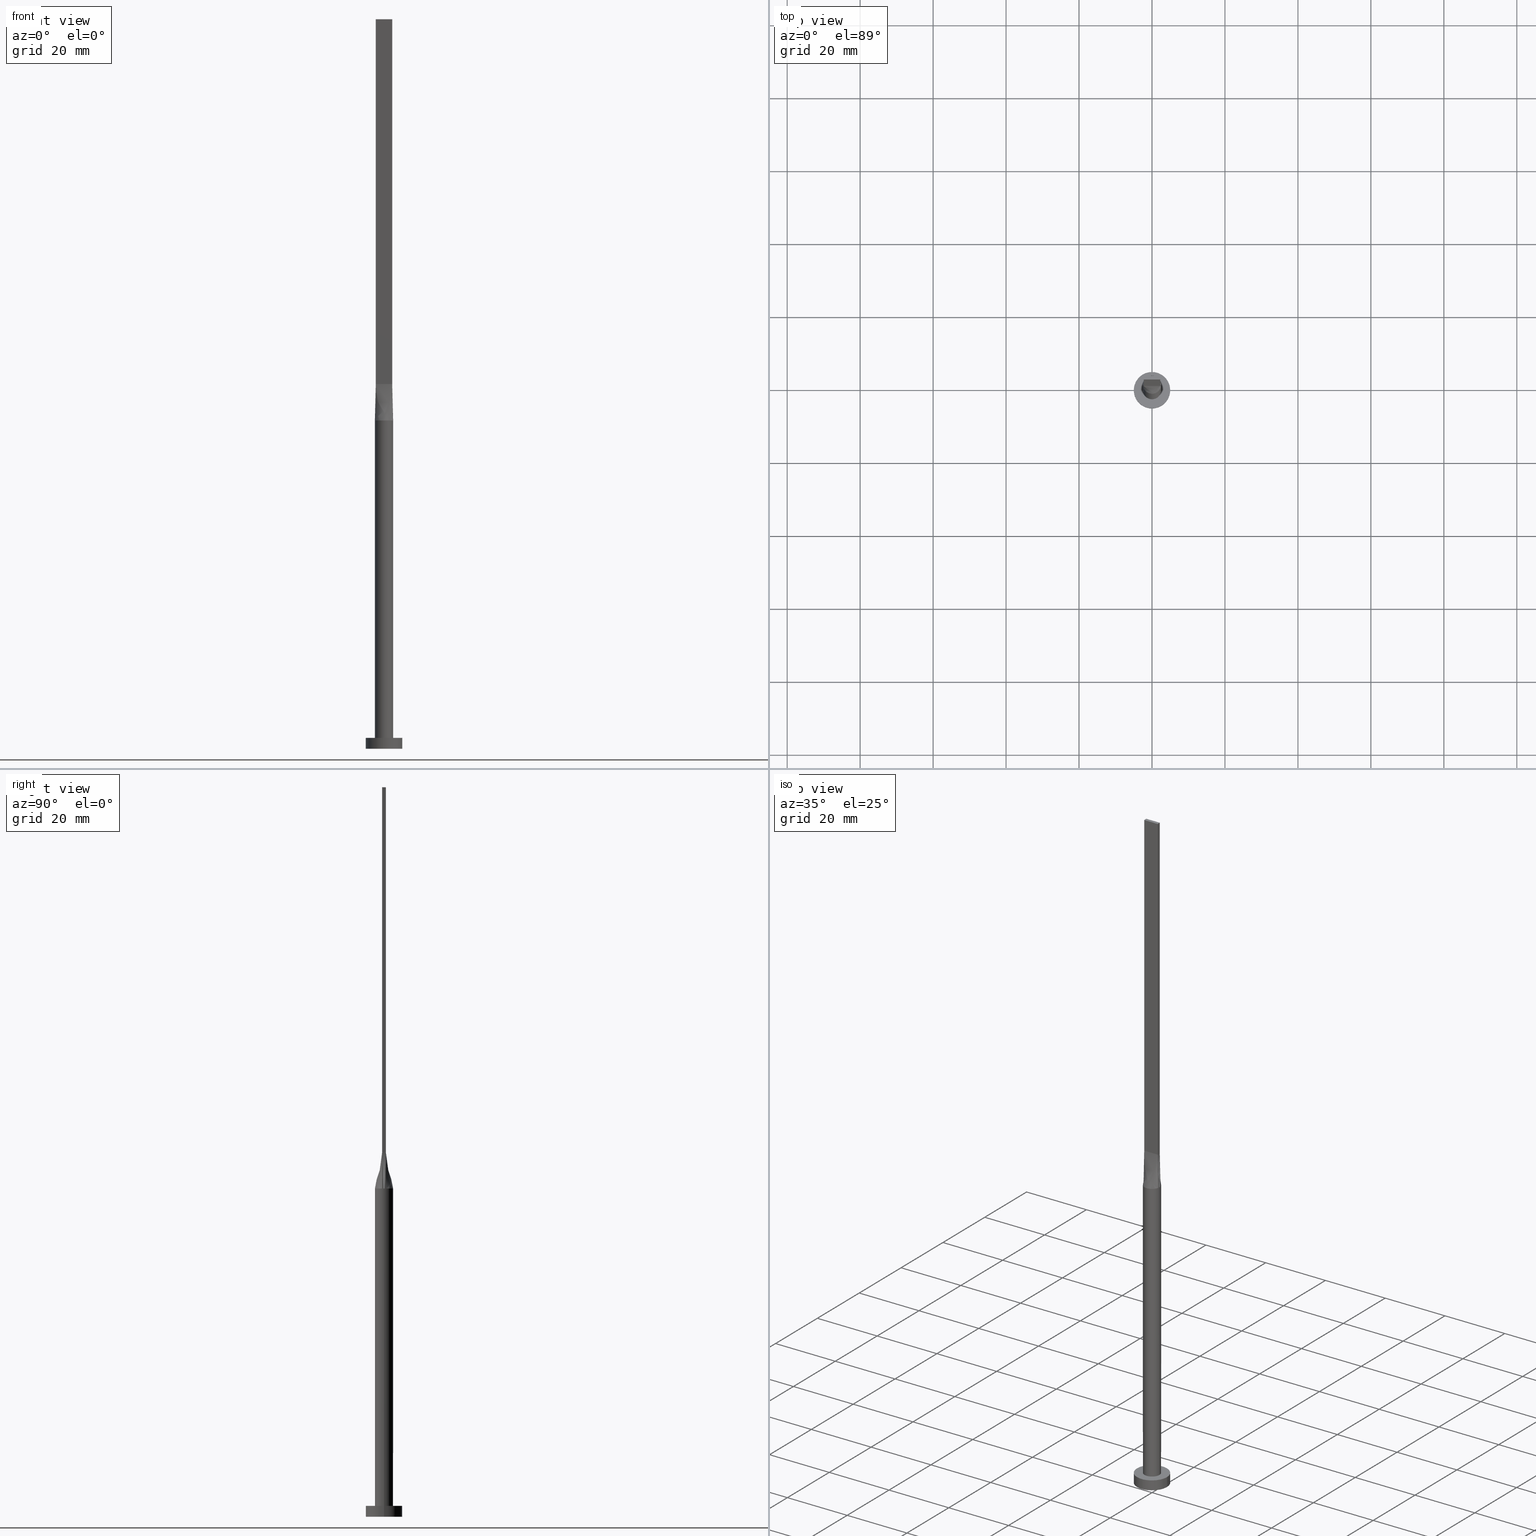
[diagram: canonical four-view strip — front | top / right | iso, engineering-drawing reading convention]
A machine part, canonical four-view strip (front | top / right | iso — engineering-drawing reading convention). The complete STEP part file that produces these views, byte-faithful:
ISO-10303-21;
HEADER;
FILE_DESCRIPTION (( 'STEP AP203' ),
    '1' );
FILE_NAME ('f4c6.STEP',
    '2023-02-13T12:34:40',
    ( '' ),
    ( '' ),
    'SwSTEP 2.0',
    'SolidWorks 2019',
    '' );
FILE_SCHEMA (( 'CONFIG_CONTROL_DESIGN' ));
ENDSEC;

DATA;
#1 = ORIENTED_EDGE ( 'NONE', *, *, #388, .T. ) ;
#2 = CARTESIAN_POINT ( 'NONE',  ( 1.875000000000000222, -0.4999999999999997780, 99.99999999999998579 ) ) ;
#3 = EDGE_LOOP ( 'NONE', ( #124, #410, #381, #63 ) ) ;
#4 = VERTEX_POINT ( 'NONE', #136 ) ;
#5 = CARTESIAN_POINT ( 'NONE',  ( -0.1874999999999995837, -0.4999999999999995559, 99.99999999999997158 ) ) ;
#6 = VECTOR ( 'NONE', #472, 1000.000000000000000 ) ;
#7 = ORIENTED_EDGE ( 'NONE', *, *, #181, .F. ) ;
#8 = EDGE_CURVE ( 'NONE', #249, #340, #45, .T. ) ;
#9 = CARTESIAN_POINT ( 'NONE',  ( 0.000000000000000000, 0.000000000000000000, 3.000000000000000000 ) ) ;
#10 = DIRECTION ( 'NONE',  ( 7.228014483236697048E-17, 1.000000000000000000, -0.000000000000000000 ) ) ;
#11 = CARTESIAN_POINT ( 'NONE',  ( 2.440467650459881899, 0.5423261445466404096, 90.00000000000000000 ) ) ;
#12 = ORIENTED_EDGE ( 'NONE', *, *, #187, .T. ) ;
#13 = FACE_OUTER_BOUND ( 'NONE', #3, .T. ) ;
#14 = CARTESIAN_POINT ( 'NONE',  ( 0.000000000000000000, 0.000000000000000000, 90.00000000000000000 ) ) ;
#15 = CARTESIAN_POINT ( 'NONE',  ( 0.3342381693191150416, 2.499999999999999556, 90.00000000000000000 ) ) ;
#16 = DIRECTION ( 'NONE',  ( 0.000000000000000000, 0.000000000000000000, 1.000000000000000000 ) ) ;
#17 = DIRECTION ( 'NONE',  ( 0.000000000000000000, 0.000000000000000000, 1.000000000000000000 ) ) ;
#18 = DIRECTION ( 'NONE',  ( 0.000000000000000000, 0.000000000000000000, 1.000000000000000000 ) ) ;
#19 = ORIENTED_EDGE ( 'NONE', *, *, #310, .F. ) ;
#20 = CARTESIAN_POINT ( 'NONE',  ( -5.000000000000000000, 0.000000000000000000, 3.000000000000000000 ) ) ;
#21 = B_SPLINE_SURFACE_WITH_KNOTS ( 'NONE', 3, 1, ( 
 ( #477, #250 ),
 ( #172, #133 ),
 ( #85, #216 ),
 ( #397, #349 ),
 ( #522, #135 ),
 ( #385, #30 ),
 ( #78, #168 ),
 ( #412, #276 ),
 ( #15, #188 ),
 ( #149, #281 ),
 ( #238, #415 ),
 ( #189, #323 ),
 ( #491, #457 ),
 ( #424, #146 ),
 ( #447, #58 ),
 ( #326, #225 ),
 ( #404, #552 ),
 ( #25, #155 ) ),
 .UNSPECIFIED., .F., .F., .F.,
 ( 4, 2, 2, 2, 2, 2, 2, 2, 4 ),
 ( 2, 2 ),
 ( 0.000000000000000000, 0.1249999999999999722, 0.2500000000000000000, 0.3750000000000000000, 0.5000000000000001110, 0.6250000000000001110, 0.7500000000000000000, 0.8750000000000000000, 1.000000000000000000 ),
 ( 0.000000000000000000, 1.000000000000000000 ),
 .UNSPECIFIED. ) ;
#22 = EDGE_CURVE ( 'NONE', #157, #4, #356, .T. ) ;
#23 = CC_DESIGN_APPROVAL ( #577, ( #113 ) ) ;
#24 = CARTESIAN_POINT ( 'NONE',  ( 2.500000000000000000, 3.061616997868383141E-16, 90.00000000000000000 ) ) ;
#25 = CARTESIAN_POINT ( 'NONE',  ( -2.440467650459882343, 0.5423261445466395214, 90.00000000000000000 ) ) ;
#26 = CARTESIAN_POINT ( 'NONE',  ( 0.000000000000000000, 0.000000000000000000, 200.0000000000000000 ) ) ;
#27 = VERTEX_POINT ( 'NONE', #83 ) ;
#28 = PERSON_AND_ORGANIZATION ( #290, #131 ) ;
#29 = ADVANCED_FACE ( 'NONE', ( #569 ), #201, .T. ) ;
#30 = CARTESIAN_POINT ( 'NONE',  ( 0.9374999999999986677, 0.5000000000000002220, 99.99999999999997158 ) ) ;
#31 = APPROVAL_STATUS ( 'not_yet_approved' ) ;
#32 = ORIENTED_EDGE ( 'NONE', *, *, #8, .F. ) ;
#33 = LOCAL_TIME ( 13, 34, 40.00000000000000000, #383 ) ;
#34 = CARTESIAN_POINT ( 'NONE',  ( -5.000000000000000000, 0.000000000000000000, 3.000000000000000000 ) ) ;
#35 = EDGE_LOOP ( 'NONE', ( #110, #476, #578, #494 ) ) ;
#36 = CLOSED_SHELL ( 'NONE', ( #246, #493, #325, #206, #94, #488, #482, #29, #171, #273, #419, #571, #547, #252, #515 ) ) ;
#37 = CC_DESIGN_PERSON_AND_ORGANIZATION_ASSIGNMENT ( #203, #73, ( #243 ) ) ;
#38 = CARTESIAN_POINT ( 'NONE',  ( 2.250000000000000000, -0.4999999999999997780, 200.0000000000000000 ) ) ;
#39 = CARTESIAN_POINT ( 'NONE',  ( 2.479683336734391563, -0.3658555563113470299, 90.00000000000000000 ) ) ;
#40 = CIRCLE ( 'NONE', #386, 5.000000000000000000 ) ;
#41 = FACE_OUTER_BOUND ( 'NONE', #72, .T. ) ;
#42 = UNCERTAINTY_MEASURE_WITH_UNIT (LENGTH_MEASURE( 1.000000000000000082E-05 ), #287, 'distance_accuracy_value', 'NONE');
#43 = CARTESIAN_POINT ( 'NONE',  ( 0.000000000000000000, 0.000000000000000000, 3.000000000000000000 ) ) ;
#44 = ORIENTED_EDGE ( 'NONE', *, *, #565, .T. ) ;
#45 = CIRCLE ( 'NONE', #456, 2.500000000000000000 ) ;
#46 = EDGE_CURVE ( 'NONE', #27, #336, #479, .T. ) ;
#47 = CARTESIAN_POINT ( 'NONE',  ( 0.000000000000000000, 0.000000000000000000, 3.000000000000000000 ) ) ;
#48 = CARTESIAN_POINT ( 'NONE',  ( -1.260416918790969509, -2.182794756967427752, 90.00000000000000000 ) ) ;
#49 = FACE_OUTER_BOUND ( 'NONE', #360, .T. ) ;
#50 = LOCAL_TIME ( 13, 34, 40.00000000000000000, #572 ) ;
#51 = CARTESIAN_POINT ( 'NONE',  ( -2.249999999999999556, 0.3333333333333335924, 99.99999999999997158 ) ) ;
#52 = ORIENTED_EDGE ( 'NONE', *, *, #106, .F. ) ;
#53 = CARTESIAN_POINT ( 'NONE',  ( 0.1875000000000004441, -0.4999999999999995559, 99.99999999999997158 ) ) ;
#54 = AXIS2_PLACEMENT_3D ( 'NONE', #567, #475, #70 ) ;
#55 = EDGE_LOOP ( 'NONE', ( #390, #68, #186, #218 ) ) ;
#56 = FACE_OUTER_BOUND ( 'NONE', #469, .T. ) ;
#57 = PRODUCT_RELATED_PRODUCT_CATEGORY ( 'detail', '', ( #243 ) ) ;
#58 = CARTESIAN_POINT ( 'NONE',  ( -1.500000000000000000, 0.5000000000000002220, 99.99999999999997158 ) ) ;
#59 = CARTESIAN_POINT ( 'NONE',  ( 2.249999999999999556, 0.5000000000000002220, 200.0000000000000000 ) ) ;
#60 = CARTESIAN_POINT ( 'NONE',  ( 2.062500000000000000, -0.4999999999999997780, 99.99999999999998579 ) ) ;
#61 = AXIS2_PLACEMENT_3D ( 'NONE', #151, #339, #163 ) ;
#62 = CARTESIAN_POINT ( 'NONE',  ( 2.249999999999999556, 0.5000000000000002220, 99.99999999999998579 ) ) ;
#63 = ORIENTED_EDGE ( 'NONE', *, *, #153, .T. ) ;
#64 = DIRECTION ( 'NONE',  ( -0.000000000000000000, -0.000000000000000000, -1.000000000000000000 ) ) ;
#65 = DIRECTION ( 'NONE',  ( -0.000000000000000000, -0.000000000000000000, -1.000000000000000000 ) ) ;
#66 = APPROVAL ( #512, 'NEUR�EN�' ) ;
#67 = CYLINDRICAL_SURFACE ( 'NONE', #103, 5.000000000000000000 ) ;
#68 = ORIENTED_EDGE ( 'NONE', *, *, #126, .F. ) ;
#69 = CC_DESIGN_APPROVAL ( #464, ( #175 ) ) ;
#70 = DIRECTION ( 'NONE',  ( 1.000000000000000000, 0.000000000000000000, 0.000000000000000000 ) ) ;
#71 = CARTESIAN_POINT ( 'NONE',  ( -2.440694335308545071, 0.5423767520433731004, 90.00000000000000000 ) ) ;
#72 = EDGE_LOOP ( 'NONE', ( #228, #497, #7, #428 ) ) ;
#73 = PERSON_AND_ORGANIZATION_ROLE ( 'design_owner' ) ;
#74 = ORIENTED_EDGE ( 'NONE', *, *, #388, .F. ) ;
#75 = SHAPE_DEFINITION_REPRESENTATION ( #459, #343 ) ;
#76 = ORIENTED_EDGE ( 'NONE', *, *, #233, .T. ) ;
#77 = EDGE_CURVE ( 'NONE', #157, #518, #548, .T. ) ;
#78 = CARTESIAN_POINT ( 'NONE',  ( 1.260416918790968843, 2.182794756967427752, 90.00000000000000000 ) ) ;
#79 = CARTESIAN_POINT ( 'NONE',  ( 0.6674771052374466329, -2.430579781493059865, 89.99999999999998579 ) ) ;
#80 = EDGE_LOOP ( 'NONE', ( #379, #142, #84, #198 ) ) ;
#81 = PERSON_AND_ORGANIZATION_ROLE ( 'creator' ) ;
#82 = CARTESIAN_POINT ( 'NONE',  ( 0.000000000000000000, 0.000000000000000000, 0.000000000000000000 ) ) ;
#83 = CARTESIAN_POINT ( 'NONE',  ( 2.500000000000000000, 3.061616997868383141E-16, 3.000000000000000000 ) ) ;
#84 = ORIENTED_EDGE ( 'NONE', *, *, #196, .F. ) ;
#85 = CARTESIAN_POINT ( 'NONE',  ( 2.323660390030918954, 0.9543733860570833283, 90.00000000000001421 ) ) ;
#86 = CC_DESIGN_PERSON_AND_ORGANIZATION_ASSIGNMENT ( #566, #81, ( #113 ) ) ;
#87 = ORIENTED_EDGE ( 'NONE', *, *, #77, .T. ) ;
#88 = CARTESIAN_POINT ( 'NONE',  ( 2.250000000000000000, -0.4999999999999997780, 200.0000000000000000 ) ) ;
#89 = PERSON_AND_ORGANIZATION ( #290, #131 ) ;
#90 = ORIENTED_EDGE ( 'NONE', *, *, #295, .F. ) ;
#91 = CARTESIAN_POINT ( 'NONE',  ( 1.260416918790968843, 2.182794756967427752, 90.00000000000000000 ) ) ;
#92 = VECTOR ( 'NONE', #161, 1000.000000000000000 ) ;
#93 = CIRCLE ( 'NONE', #275, 2.500000000000000000 ) ;
#94 = ADVANCED_FACE ( 'NONE', ( #227 ), #184, .F. ) ;
#95 = DIRECTION ( 'NONE',  ( -0.000000000000000000, -0.000000000000000000, -1.000000000000000000 ) ) ;
#96 = CARTESIAN_POINT ( 'NONE',  ( -2.396350003401058082, 0.7408555563113466969, 90.00000000000001421 ) ) ;
#97 = DIRECTION ( 'NONE',  ( -1.000000000000000000, 0.000000000000000000, 0.000000000000000000 ) ) ;
#98 = CARTESIAN_POINT ( 'NONE',  ( -0.9375000000000002220, -0.4999999999999995559, 99.99999999999998579 ) ) ;
#99 = CARTESIAN_POINT ( 'NONE',  ( -1.519400572660313253, 2.006070808634367264, 90.00000000000001421 ) ) ;
#100 = DESIGN_CONTEXT ( 'detailed design', #220, 'design' ) ;
#101 = DIRECTION ( 'NONE',  ( -4.336808689942017736E-16, 1.000000000000000000, -0.000000000000000000 ) ) ;
#102 = CARTESIAN_POINT ( 'NONE',  ( -0.7500000000000002220, -0.4999999999999995559, 99.99999999999997158 ) ) ;
#103 = AXIS2_PLACEMENT_3D ( 'NONE', #416, #65, #205 ) ;
#104 = CARTESIAN_POINT ( 'NONE',  ( 0.7500000000000000000, -0.4999999999999995559, 99.99999999999997158 ) ) ;
#105 = EDGE_LOOP ( 'NONE', ( #76, #369 ) ) ;
#106 = EDGE_CURVE ( 'NONE', #204, #376, #129, .T. ) ;
#107 = CYLINDRICAL_SURFACE ( 'NONE', #550, 2.500000000000000000 ) ;
#108 = DIRECTION ( 'NONE',  ( 1.000000000000000000, 0.000000000000000000, 0.000000000000000000 ) ) ;
#109 = VECTOR ( 'NONE', #182, 1000.000000000000000 ) ;
#110 = ORIENTED_EDGE ( 'NONE', *, *, #22, .T. ) ;
#111 = CARTESIAN_POINT ( 'NONE',  ( -2.250000000000000000, -0.4999999999999994449, 99.99999999999998579 ) ) ;
#112 = CARTESIAN_POINT ( 'NONE',  ( 0.000000000000000000, 0.000000000000000000, 90.00000000000000000 ) ) ;
#113 = PRODUCT_DEFINITION_FORMATION_WITH_SPECIFIED_SOURCE ( 'LIBOVOLN�', '', #243, .NOT_KNOWN. ) ;
#114 = DIRECTION ( 'NONE',  ( 0.000000000000000000, 0.000000000000000000, 1.000000000000000000 ) ) ;
#115 = PRODUCT_DEFINITION ( 'NEZN�M�', '', #113, #100 ) ;
#116 = APPROVAL_ROLE ( '' ) ;
#117 = B_SPLINE_SURFACE_WITH_KNOTS ( 'NONE', 3, 1, ( 
 ( #232, #443 ),
 ( #359, #51 ),
 ( #541, #581 ),
 ( #446, #539 ),
 ( #236, #260 ),
 ( #438, #226 ) ),
 .UNSPECIFIED., .F., .F., .F.,
 ( 4, 2, 4 ),
 ( 2, 2 ),
 ( 0.000000000000000000, 0.5000000000000000000, 1.000000000000000000 ),
 ( 0.000000000000000000, 1.000000000000000000 ),
 .UNSPECIFIED. ) ;
#118 = CARTESIAN_POINT ( 'NONE',  ( -2.250000000000000000, -0.4999999999999994449, 200.0000000000000000 ) ) ;
#119 = ORIENTED_EDGE ( 'NONE', *, *, #319, .F. ) ;
#120 =( NAMED_UNIT ( * ) PLANE_ANGLE_UNIT ( ) SI_UNIT ( $, .RADIAN. ) );
#121 = AXIS2_PLACEMENT_3D ( 'NONE', #43, #313, #401 ) ;
#122 = ORIENTED_EDGE ( 'NONE', *, *, #8, .T. ) ;
#123 = CARTESIAN_POINT ( 'NONE',  ( 2.499291179871646396, 0.1829277781556730154, 90.00000000000000000 ) ) ;
#124 = ORIENTED_EDGE ( 'NONE', *, *, #310, .T. ) ;
#125 = PERSON_AND_ORGANIZATION_ROLE ( 'creator' ) ;
#126 = EDGE_CURVE ( 'NONE', #377, #453, #137, .T. ) ;
#127 = CALENDAR_DATE ( 2023, 13, 2 ) ;
#128 = CARTESIAN_POINT ( 'NONE',  ( 2.250000000000000000, -0.3333333333333330928, 99.99999999999997158 ) ) ;
#129 = CIRCLE ( 'NONE', #54, 5.000000000000000000 ) ;
#130 = APPROVAL_ROLE ( '' ) ;
#131 = ORGANIZATION ( 'NEUR�EN�', 'NEUR�EN�', '' ) ;
#132 = EDGE_CURVE ( 'NONE', #544, #518, #234, .T. ) ;
#133 = CARTESIAN_POINT ( 'NONE',  ( 2.062499999999999112, 0.5000000000000002220, 99.99999999999997158 ) ) ;
#134 = CARTESIAN_POINT ( 'NONE',  ( 2.250000000000000000, -0.4999999999999997780, 99.99999999999998579 ) ) ;
#135 = CARTESIAN_POINT ( 'NONE',  ( 1.312499999999998668, 0.5000000000000002220, 99.99999999999997158 ) ) ;
#136 = CARTESIAN_POINT ( 'NONE',  ( -2.249999999999999556, 0.5000000000000002220, 200.0000000000000000 ) ) ;
#137 = LINE ( 'NONE', #403, #345 ) ;
#138 = VECTOR ( 'NONE', #408, 1000.000000000000000 ) ;
#139 = DIRECTION ( 'NONE',  ( 0.000000000000000000, 0.000000000000000000, 1.000000000000000000 ) ) ;
#140 = CARTESIAN_POINT ( 'NONE',  ( 0.9375000000000000000, -0.4999999999999995559, 99.99999999999998579 ) ) ;
#141 = DIRECTION ( 'NONE',  ( -1.000000000000000000, 0.000000000000000000, 0.000000000000000000 ) ) ;
#142 = ORIENTED_EDGE ( 'NONE', *, *, #187, .F. ) ;
#143 = CARTESIAN_POINT ( 'NONE',  ( -0.6674771052374470770, 2.430579781493059421, 89.99999999999998579 ) ) ;
#144 = CARTESIAN_POINT ( 'NONE',  ( 0.000000000000000000, 0.000000000000000000, 90.00000000000000000 ) ) ;
#145 = VECTOR ( 'NONE', #255, 1000.000000000000000 ) ;
#146 = CARTESIAN_POINT ( 'NONE',  ( -1.312500000000000222, 0.5000000000000002220, 99.99999999999997158 ) ) ;
#147 = CARTESIAN_POINT ( 'NONE',  ( -2.440694335308545071, 0.5423767520433731004, 90.00000000000000000 ) ) ;
#148 = CARTESIAN_POINT ( 'NONE',  ( 2.249999999999999556, 0.3333333333333335369, 99.99999999999997158 ) ) ;
#149 = CARTESIAN_POINT ( 'NONE',  ( -0.3342381693191151526, 2.499999999999999556, 90.00000000000001421 ) ) ;
#150 = EDGE_CURVE ( 'NONE', #340, #282, #224, .T. ) ;
#151 = CARTESIAN_POINT ( 'NONE',  ( -2.249999999999999556, 0.5000000000000002220, 200.0000000000000000 ) ) ;
#152 = EDGE_LOOP ( 'NONE', ( #423, #119, #303, #87 ) ) ;
#153 = EDGE_CURVE ( 'NONE', #453, #371, #180, .T. ) ;
#154 = DIRECTION ( 'NONE',  ( -0.000000000000000000, -0.000000000000000000, -1.000000000000000000 ) ) ;
#155 = CARTESIAN_POINT ( 'NONE',  ( -2.249999999999999556, 0.5000000000000002220, 99.99999999999998579 ) ) ;
#156 = PERSON_AND_ORGANIZATION ( #290, #131 ) ;
#157 = VERTEX_POINT ( 'NONE', #405 ) ;
#158 = COORDINATED_UNIVERSAL_TIME_OFFSET ( 1, 0, .AHEAD. ) ;
#159 = FACE_OUTER_BOUND ( 'NONE', #55, .T. ) ;
#160 = DIRECTION ( 'NONE',  ( 0.000000000000000000, 0.000000000000000000, 1.000000000000000000 ) ) ;
#161 = DIRECTION ( 'NONE',  ( -0.000000000000000000, -0.000000000000000000, -1.000000000000000000 ) ) ;
#162 = VERTEX_POINT ( 'NONE', #317 ) ;
#163 = DIRECTION ( 'NONE',  ( 4.336808689942020201E-16, 1.000000000000000000, 0.000000000000000000 ) ) ;
#164 = EDGE_CURVE ( 'NONE', #197, #249, #382, .T. ) ;
#165 = LINE ( 'NONE', #211, #145 ) ;
#166 = VERTEX_POINT ( 'NONE', #274 ) ;
#167 = AXIS2_PLACEMENT_3D ( 'NONE', #418, #16, #549 ) ;
#168 = CARTESIAN_POINT ( 'NONE',  ( 0.7499999999999986677, 0.5000000000000002220, 99.99999999999997158 ) ) ;
#169 = APPROVAL_DATE_TIME ( #517, #577 ) ;
#170 = CARTESIAN_POINT ( 'NONE',  ( 1.312499999999999778, -0.4999999999999996669, 99.99999999999998579 ) ) ;
#171 = ADVANCED_FACE ( 'NONE', ( #49 ), #117, .T. ) ;
#172 = CARTESIAN_POINT ( 'NONE',  ( 2.396350003401058526, 0.7408555563113465858, 90.00000000000001421 ) ) ;
#173 = LINE ( 'NONE', #524, #442 ) ;
#174 = ORIENTED_EDGE ( 'NONE', *, *, #77, .F. ) ;
#175 = SECURITY_CLASSIFICATION ( '', '', #394 ) ;
#176 = LINE ( 'NONE', #483, #492 ) ;
#177 = COORDINATED_UNIVERSAL_TIME_OFFSET ( 1, 0, .AHEAD. ) ;
#178 = DIRECTION ( 'NONE',  ( -1.000000000000000000, 0.000000000000000000, 0.000000000000000000 ) ) ;
#179 = CARTESIAN_POINT ( 'NONE',  ( -2.249999999999999556, 0.5000000000000002220, 99.99999999999998579 ) ) ;
#180 = LINE ( 'NONE', #355, #272 ) ;
#181 = EDGE_CURVE ( 'NONE', #518, #166, #575, .T. ) ;
#182 = DIRECTION ( 'NONE',  ( -0.000000000000000000, -0.000000000000000000, -1.000000000000000000 ) ) ;
#183 = CARTESIAN_POINT ( 'NONE',  ( -0.3749999999999997780, -0.4999999999999995559, 99.99999999999997158 ) ) ;
#184 = PLANE ( 'NONE',  #311 ) ;
#185 = LINE ( 'NONE', #230, #138 ) ;
#186 = ORIENTED_EDGE ( 'NONE', *, *, #212, .F. ) ;
#187 = EDGE_CURVE ( 'NONE', #261, #544, #185, .T. ) ;
#188 = CARTESIAN_POINT ( 'NONE',  ( 0.1874999999999989175, 0.5000000000000002220, 99.99999999999997158 ) ) ;
#189 = CARTESIAN_POINT ( 'NONE',  ( -1.260416918790968843, 2.182794756967428196, 90.00000000000000000 ) ) ;
#190 = DIRECTION ( 'NONE',  ( 0.000000000000000000, 0.000000000000000000, 1.000000000000000000 ) ) ;
#191 = CARTESIAN_POINT ( 'NONE',  ( 2.396350003401058082, -0.7408555563113468079, 90.00000000000001421 ) ) ;
#192 = ORIENTED_EDGE ( 'NONE', *, *, #372, .F. ) ;
#193 = MANIFOLD_SOLID_BREP ( 'P�idat vysunut�m5', #36 ) ;
#194 = DIRECTION ( 'NONE',  ( 0.000000000000000000, -1.000000000000000000, 0.000000000000000000 ) ) ;
#195 = DIRECTION ( 'NONE',  ( 0.000000000000000000, 0.000000000000000000, 1.000000000000000000 ) ) ;
#196 = EDGE_CURVE ( 'NONE', #377, #261, #579, .T. ) ;
#197 = VERTEX_POINT ( 'NONE', #270 ) ;
#198 = ORIENTED_EDGE ( 'NONE', *, *, #126, .T. ) ;
#199 = VECTOR ( 'NONE', #101, 1000.000000000000000 ) ;
#200 = PLANE ( 'NONE',  #511 ) ;
#201 = B_SPLINE_SURFACE_WITH_KNOTS ( 'NONE', 3, 1, ( 
 ( #308, #134 ),
 ( #39, #128 ),
 ( #292, #422 ),
 ( #123, #297 ),
 ( #324, #148 ),
 ( #11, #280 ) ),
 .UNSPECIFIED., .F., .F., .F.,
 ( 4, 2, 4 ),
 ( 2, 2 ),
 ( 0.000000000000000000, 0.5000000000000000000, 1.000000000000000000 ),
 ( 0.000000000000000000, 1.000000000000000000 ),
 .UNSPECIFIED. ) ;
#202 = DIRECTION ( 'NONE',  ( -0.000000000000000000, -0.000000000000000000, -1.000000000000000000 ) ) ;
#203 = PERSON_AND_ORGANIZATION ( #290, #131 ) ;
#204 = VERTEX_POINT ( 'NONE', #354 ) ;
#205 = DIRECTION ( 'NONE',  ( -1.000000000000000000, 0.000000000000000000, 0.000000000000000000 ) ) ;
#206 = ADVANCED_FACE ( 'NONE', ( #264, #570 ), #433, .T. ) ;
#207 = LINE ( 'NONE', #294, #413 ) ;
#208 = EDGE_LOOP ( 'NONE', ( #251, #74 ) ) ;
#209 =( NAMED_UNIT ( * ) SI_UNIT ( $, .STERADIAN. ) SOLID_ANGLE_UNIT ( ) );
#210 = AXIS2_PLACEMENT_3D ( 'NONE', #223, #139, #399 ) ;
#211 = CARTESIAN_POINT ( 'NONE',  ( -2.345233825229940727, 0.5211630722733198162, 95.00000000000000000 ) ) ;
#212 = EDGE_CURVE ( 'NONE', #4, #377, #176, .T. ) ;
#213 = ORIENTED_EDGE ( 'NONE', *, *, #445, .F. ) ;
#214 = DIRECTION ( 'NONE',  ( 1.000000000000000000, 0.000000000000000000, -0.000000000000000000 ) ) ;
#215 = VECTOR ( 'NONE', #526, 1000.000000000000000 ) ;
#216 = CARTESIAN_POINT ( 'NONE',  ( 1.874999999999999112, 0.5000000000000002220, 99.99999999999997158 ) ) ;
#217 = COORDINATED_UNIVERSAL_TIME_OFFSET ( 1, 0, .AHEAD. ) ;
#218 = ORIENTED_EDGE ( 'NONE', *, *, #319, .T. ) ;
#219 = AXIS2_PLACEMENT_3D ( 'NONE', #463, #18, #291 ) ;
#220 = APPLICATION_CONTEXT ( 'configuration controlled 3d designs of mechanical parts and assemblies' ) ;
#221 = DIRECTION ( 'NONE',  ( -4.336808689942017736E-16, 1.000000000000000000, 0.000000000000000000 ) ) ;
#222 = DIRECTION ( 'NONE',  ( -0.000000000000000000, -0.000000000000000000, -1.000000000000000000 ) ) ;
#223 = CARTESIAN_POINT ( 'NONE',  ( 0.000000000000000000, 0.000000000000000000, 3.000000000000000000 ) ) ;
#224 = B_SPLINE_CURVE_WITH_KNOTS ( 'NONE', 3,
 ( #309, #432, #480, #353, #533, #441, #91, #229, #269, #530, #143, #409, #99, #574, #534, #489, #96, #147 ),
 .UNSPECIFIED., .F., .F.,
 ( 4, 2, 2, 2, 2, 2, 2, 2, 4 ),
 ( 0.000000000000000000, 0.1249999999999999722, 0.2500000000000000000, 0.3750000000000000000, 0.5000000000000001110, 0.6250000000000001110, 0.7500000000000000000, 0.8750000000000000000, 1.000000000000000000 ),
 .UNSPECIFIED. ) ;
#225 = CARTESIAN_POINT ( 'NONE',  ( -1.874999999999999778, 0.5000000000000002220, 99.99999999999997158 ) ) ;
#226 = CARTESIAN_POINT ( 'NONE',  ( -2.250000000000000000, -0.4999999999999993339, 99.99999999999998579 ) ) ;
#227 = FACE_OUTER_BOUND ( 'NONE', #208, .T. ) ;
#228 = ORIENTED_EDGE ( 'NONE', *, *, #150, .T. ) ;
#229 = CARTESIAN_POINT ( 'NONE',  ( 0.6674771052374470770, 2.430579781493058977, 89.99999999999997158 ) ) ;
#230 = CARTESIAN_POINT ( 'NONE',  ( 2.250000000000000000, -0.4999999999999997780, 200.0000000000000000 ) ) ;
#231 = VECTOR ( 'NONE', #202, 1000.000000000000000 ) ;
#232 = CARTESIAN_POINT ( 'NONE',  ( -2.440467650459881899, 0.5423261445466406316, 90.00000000000000000 ) ) ;
#233 = EDGE_CURVE ( 'NONE', #376, #204, #361, .T. ) ;
#234 = LINE ( 'NONE', #312, #199 ) ;
#235 = CARTESIAN_POINT ( 'NONE',  ( -1.519400572660313919, -2.006070808634366820, 89.99999999999998579 ) ) ;
#236 = CARTESIAN_POINT ( 'NONE',  ( -2.479683336734392007, -0.3658555563113460307, 90.00000000000000000 ) ) ;
#237 = AXIS2_PLACEMENT_3D ( 'NONE', #502, #114, #373 ) ;
#238 = CARTESIAN_POINT ( 'NONE',  ( -0.6674771052374470770, 2.430579781493059421, 89.99999999999998579 ) ) ;
#239 =( GEOMETRIC_REPRESENTATION_CONTEXT ( 3 ) GLOBAL_UNCERTAINTY_ASSIGNED_CONTEXT ( ( #42 ) ) GLOBAL_UNIT_ASSIGNED_CONTEXT ( ( #287, #120, #209 ) ) REPRESENTATION_CONTEXT ( 'NONE', 'WORKASPACE' ) );
#240 = DIRECTION ( 'NONE',  ( 1.000000000000000000, 0.000000000000000000, 0.000000000000000000 ) ) ;
#241 = FACE_OUTER_BOUND ( 'NONE', #80, .T. ) ;
#242 = MECHANICAL_CONTEXT ( 'NONE', #366, 'mechanical' ) ;
#243 = PRODUCT ( 'f4c6', 'f4c6', '', ( #242 ) ) ;
#244 = CARTESIAN_POINT ( 'NONE',  ( 0.000000000000000000, 0.000000000000000000, 0.000000000000000000 ) ) ;
#245 = VECTOR ( 'NONE', #334, 1000.000000000000000 ) ;
#246 = ADVANCED_FACE ( 'NONE', ( #316 ), #531, .T. ) ;
#247 = CARTESIAN_POINT ( 'NONE',  ( -2.396350003401058970, -0.7408555563113458087, 89.99999999999998579 ) ) ;
#248 = APPLICATION_PROTOCOL_DEFINITION ( 'international standard', 'config_control_design', 1994, #220 ) ;
#249 = VERTEX_POINT ( 'NONE', #568 ) ;
#250 = CARTESIAN_POINT ( 'NONE',  ( 2.249999999999999556, 0.5000000000000002220, 99.99999999999998579 ) ) ;
#251 = ORIENTED_EDGE ( 'NONE', *, *, #411, .F. ) ;
#252 = ADVANCED_FACE ( 'NONE', ( #434 ), #516, .F. ) ;
#253 = DIRECTION ( 'NONE',  ( 4.336808689942017736E-16, -1.000000000000000000, 0.000000000000000000 ) ) ;
#254 = DATE_TIME_ROLE ( 'classification_date' ) ;
#255 = DIRECTION ( 'NONE',  ( 0.01904314058352524902, -0.004231809018561034225, 0.9998097071888962795 ) ) ;
#256 = AXIS2_PLACEMENT_3D ( 'NONE', #9, #190, #365 ) ;
#257 = ORIENTED_EDGE ( 'NONE', *, *, #554, .F. ) ;
#258 = LINE ( 'NONE', #467, #6 ) ;
#259 = CARTESIAN_POINT ( 'NONE',  ( 2.345233825229940727, -0.5211630722733201493, 95.00000000000000000 ) ) ;
#260 = CARTESIAN_POINT ( 'NONE',  ( -2.250000000000000000, -0.3333333333333327597, 99.99999999999997158 ) ) ;
#261 = VERTEX_POINT ( 'NONE', #563 ) ;
#262 = ORIENTED_EDGE ( 'NONE', *, *, #554, .T. ) ;
#263 = CARTESIAN_POINT ( 'NONE',  ( -2.500000000000000000, 0.000000000000000000, 3.000000000000000000 ) ) ;
#264 = FACE_BOUND ( 'NONE', #414, .T. ) ;
#265 = AXIS2_PLACEMENT_3D ( 'NONE', #144, #95, #271 ) ;
#266 = LOCAL_TIME ( 13, 34, 40.00000000000000000, #217 ) ;
#267 = EDGE_CURVE ( 'NONE', #453, #544, #258, .T. ) ;
#268 = EDGE_LOOP ( 'NONE', ( #448, #322, #19, #257, #452, #525 ) ) ;
#269 = CARTESIAN_POINT ( 'NONE',  ( 0.3342381693191150416, 2.499999999999999556, 90.00000000000000000 ) ) ;
#270 = CARTESIAN_POINT ( 'NONE',  ( 2.440706242928429415, -0.5423794613208688942, 90.00000000000000000 ) ) ;
#271 = DIRECTION ( 'NONE',  ( -1.000000000000000000, 0.000000000000000000, 0.000000000000000000 ) ) ;
#272 = VECTOR ( 'NONE', #321, 1000.000000000000000 ) ;
#273 = ADVANCED_FACE ( 'NONE', ( #41 ), #21, .T. ) ;
#274 = CARTESIAN_POINT ( 'NONE',  ( -2.249999999999999556, 0.5000000000000002220, 99.99999999999998579 ) ) ;
#275 = AXIS2_PLACEMENT_3D ( 'NONE', #545, #17, #240 ) ;
#276 = CARTESIAN_POINT ( 'NONE',  ( 0.3749999999999988343, 0.5000000000000002220, 99.99999999999997158 ) ) ;
#277 = CARTESIAN_POINT ( 'NONE',  ( -0.6674771052374477431, -2.430579781493059865, 90.00000000000001421 ) ) ;
#278 = LINE ( 'NONE', #24, #285 ) ;
#279 = DIRECTION ( 'NONE',  ( 1.000000000000000000, -4.440892098500626162E-15, 0.000000000000000000 ) ) ;
#280 = CARTESIAN_POINT ( 'NONE',  ( 2.249999999999999556, 0.5000000000000002220, 99.99999999999998579 ) ) ;
#281 = CARTESIAN_POINT ( 'NONE',  ( -0.1875000000000011380, 0.5000000000000002220, 99.99999999999997158 ) ) ;
#282 = VERTEX_POINT ( 'NONE', #71 ) ;
#283 = ORIENTED_EDGE ( 'NONE', *, *, #233, .F. ) ;
#284 = EDGE_CURVE ( 'NONE', #166, #453, #335, .T. ) ;
#285 = VECTOR ( 'NONE', #64, 1000.000000000000000 ) ;
#286 = PLANE ( 'NONE',  #362 ) ;
#287 =( LENGTH_UNIT ( ) NAMED_UNIT ( * ) SI_UNIT ( .MILLI., .METRE. ) );
#288 = CARTESIAN_POINT ( 'NONE',  ( 0.000000000000000000, 0.000000000000000000, 0.000000000000000000 ) ) ;
#289 = CARTESIAN_POINT ( 'NONE',  ( -2.249999999999999556, 0.5000000000000002220, 200.0000000000000000 ) ) ;
#290 = PERSON ( 'NEUR�EN�', 'NEUR�EN�', 'NEUR�EN�', ('NEUR�EN�'), ('NEUR�EN�'), ('NEUR�EN�') ) ;
#291 = DIRECTION ( 'NONE',  ( 1.000000000000000000, 0.000000000000000000, 0.000000000000000000 ) ) ;
#292 = CARTESIAN_POINT ( 'NONE',  ( 2.499291179871646396, -0.1829277781556736815, 90.00000000000000000 ) ) ;
#293 = ORIENTED_EDGE ( 'NONE', *, *, #437, .T. ) ;
#294 = CARTESIAN_POINT ( 'NONE',  ( 2.345233825229940283, 0.5211630722733202603, 95.00000000000000000 ) ) ;
#295 = EDGE_CURVE ( 'NONE', #376, #162, #329, .T. ) ;
#296 = AXIS2_PLACEMENT_3D ( 'NONE', #47, #318, #97 ) ;
#297 = CARTESIAN_POINT ( 'NONE',  ( 2.249999999999999556, 0.1666666666666668795, 99.99999999999997158 ) ) ;
#298 = DIRECTION ( 'NONE',  ( 0.000000000000000000, 0.000000000000000000, 1.000000000000000000 ) ) ;
#299 = CARTESIAN_POINT ( 'NONE',  ( -2.250000000000000000, -0.4999999999999994449, 200.0000000000000000 ) ) ;
#300 = EDGE_LOOP ( 'NONE', ( #52, #44, #1, #90 ) ) ;
#301 = EDGE_CURVE ( 'NONE', #340, #518, #207, .T. ) ;
#302 = DATE_AND_TIME ( #127, #266 ) ;
#303 = ORIENTED_EDGE ( 'NONE', *, *, #22, .F. ) ;
#304 = ORIENTED_EDGE ( 'NONE', *, *, #164, .T. ) ;
#305 = CARTESIAN_POINT ( 'NONE',  ( -2.440688158044365785, -0.5423755258804862089, 90.00000000000000000 ) ) ;
#306 = CALENDAR_DATE ( 2023, 13, 2 ) ;
#307 = ORIENTED_EDGE ( 'NONE', *, *, #284, .F. ) ;
#308 = CARTESIAN_POINT ( 'NONE',  ( 2.440467650459881899, -0.5423261445466410757, 90.00000000000000000 ) ) ;
#309 = CARTESIAN_POINT ( 'NONE',  ( 2.440676307083422980, 0.5423728264510006003, 90.00000000000000000 ) ) ;
#310 = EDGE_CURVE ( 'NONE', #371, #197, #560, .T. ) ;
#311 = AXIS2_PLACEMENT_3D ( 'NONE', #288, #392, #214 ) ;
#312 = CARTESIAN_POINT ( 'NONE',  ( 2.249999999999999556, 0.5000000000000002220, 99.99999999999998579 ) ) ;
#313 = DIRECTION ( 'NONE',  ( 0.000000000000000000, 0.000000000000000000, 1.000000000000000000 ) ) ;
#314 = AXIS2_PLACEMENT_3D ( 'NONE', #118, #10, #458 ) ;
#315 = CARTESIAN_POINT ( 'NONE',  ( 1.935644909179608852, -1.608159499248284829, 89.99999999999998579 ) ) ;
#316 = FACE_OUTER_BOUND ( 'NONE', #470, .T. ) ;
#317 = CARTESIAN_POINT ( 'NONE',  ( -5.000000000000000000, 0.000000000000000000, 0.000000000000000000 ) ) ;
#318 = DIRECTION ( 'NONE',  ( -0.000000000000000000, -0.000000000000000000, -1.000000000000000000 ) ) ;
#319 = EDGE_CURVE ( 'NONE', #4, #166, #499, .T. ) ;
#320 = CARTESIAN_POINT ( 'NONE',  ( -2.093723281432891881, -1.388001797188529007, 90.00000000000000000 ) ) ;
#321 = DIRECTION ( 'NONE',  ( -0.01904314058352520739, -0.004231809018561164329, -0.9998097071888962795 ) ) ;
#322 = ORIENTED_EDGE ( 'NONE', *, *, #164, .F. ) ;
#323 = CARTESIAN_POINT ( 'NONE',  ( -0.7500000000000009992, 0.5000000000000002220, 99.99999999999997158 ) ) ;
#324 = CARTESIAN_POINT ( 'NONE',  ( 2.479683336734391563, 0.3658555563113463638, 90.00000000000000000 ) ) ;
#325 = ADVANCED_FACE ( 'NONE', ( #56 ), #440, .T. ) ;
#326 = CARTESIAN_POINT ( 'NONE',  ( -2.323660390030918510, 0.9543733860570832173, 90.00000000000001421 ) ) ;
#327 = CARTESIAN_POINT ( 'NONE',  ( 2.440467650459881899, -0.5423261445466405206, 90.00000000000000000 ) ) ;
#328 = ORIENTED_EDGE ( 'NONE', *, *, #437, .F. ) ;
#329 = LINE ( 'NONE', #20, #92 ) ;
#330 = VECTOR ( 'NONE', #221, 1000.000000000000000 ) ;
#331 = APPROVAL_DATE_TIME ( #368, #66 ) ;
#332 = EDGE_LOOP ( 'NONE', ( #358, #174, #460, #12 ) ) ;
#333 = EDGE_CURVE ( 'NONE', #455, #336, #173, .T. ) ;
#334 = DIRECTION ( 'NONE',  ( -0.000000000000000000, -0.000000000000000000, -1.000000000000000000 ) ) ;
#335 = LINE ( 'NONE', #462, #338 ) ;
#336 = VERTEX_POINT ( 'NONE', #263 ) ;
#337 = ORIENTED_EDGE ( 'NONE', *, *, #565, .F. ) ;
#338 = VECTOR ( 'NONE', #503, 1000.000000000000000 ) ;
#339 = DIRECTION ( 'NONE',  ( 1.000000000000000000, -4.336808689942020201E-16, 0.000000000000000000 ) ) ;
#340 = VERTEX_POINT ( 'NONE', #430 ) ;
#341 = FACE_OUTER_BOUND ( 'NONE', #300, .T. ) ;
#342 = PERSON_AND_ORGANIZATION_ROLE ( 'design_supplier' ) ;
#343 = ADVANCED_BREP_SHAPE_REPRESENTATION ( 'f4c6', ( #193, #219 ), #239 ) ;
#344 = CARTESIAN_POINT ( 'NONE',  ( 2.249999999999999556, 0.5000000000000002220, 200.0000000000000000 ) ) ;
#345 = VECTOR ( 'NONE', #222, 1000.000000000000000 ) ;
#346 = CALENDAR_DATE ( 2023, 13, 2 ) ;
#347 = APPROVAL_PERSON_ORGANIZATION ( #89, #464, #130 ) ;
#348 = EDGE_CURVE ( 'NONE', #261, #157, #436, .T. ) ;
#349 = CARTESIAN_POINT ( 'NONE',  ( 1.499999999999998668, 0.5000000000000002220, 99.99999999999997158 ) ) ;
#350 = DATE_AND_TIME ( #306, #576 ) ;
#351 = DIRECTION ( 'NONE',  ( -4.336808689942019708E-16, -1.000000000000000000, 0.000000000000000000 ) ) ;
#352 = VECTOR ( 'NONE', #487, 1000.000000000000000 ) ;
#353 = CARTESIAN_POINT ( 'NONE',  ( 2.093723281432890104, 1.388001797188529007, 89.99999999999995737 ) ) ;
#354 = CARTESIAN_POINT ( 'NONE',  ( 5.000000000000000000, 6.123233995736766282E-16, 3.000000000000000000 ) ) ;
#355 = CARTESIAN_POINT ( 'NONE',  ( -2.345233825229941171, -0.5211630722733197052, 95.00000000000000000 ) ) ;
#356 = LINE ( 'NONE', #474, #429 ) ;
#357 = CARTESIAN_POINT ( 'NONE',  ( -1.935644909179609297, -1.608159499248284829, 90.00000000000001421 ) ) ;
#358 = ORIENTED_EDGE ( 'NONE', *, *, #132, .T. ) ;
#359 = CARTESIAN_POINT ( 'NONE',  ( -2.479683336734391563, 0.3658555563113465858, 90.00000000000000000 ) ) ;
#360 = EDGE_LOOP ( 'NONE', ( #293, #262, #400, #307, #192 ) ) ;
#361 = CIRCLE ( 'NONE', #121, 5.000000000000000000 ) ;
#362 = AXIS2_PLACEMENT_3D ( 'NONE', #59, #194, #449 ) ;
#363 = CC_DESIGN_DATE_AND_TIME_ASSIGNMENT ( #350, #254, ( #175 ) ) ;
#364 = CARTESIAN_POINT ( 'NONE',  ( 2.250000000000000000, -0.4999999999999997780, 99.99999999999998579 ) ) ;
#365 = DIRECTION ( 'NONE',  ( 1.000000000000000000, 0.000000000000000000, 0.000000000000000000 ) ) ;
#366 = APPLICATION_CONTEXT ( 'configuration controlled 3d designs of mechanical parts and assemblies' ) ;
#367 = ORIENTED_EDGE ( 'NONE', *, *, #150, .F. ) ;
#368 = DATE_AND_TIME ( #553, #33 ) ;
#369 = ORIENTED_EDGE ( 'NONE', *, *, #106, .T. ) ;
#370 = VERTEX_POINT ( 'NONE', #427 ) ;
#371 = VERTEX_POINT ( 'NONE', #305 ) ;
#372 = EDGE_CURVE ( 'NONE', #282, #166, #165, .T. ) ;
#373 = DIRECTION ( 'NONE',  ( 1.000000000000000000, 0.000000000000000000, 0.000000000000000000 ) ) ;
#374 = CARTESIAN_POINT ( 'NONE',  ( -2.440467650459882343, -0.5423261445466400765, 90.00000000000000000 ) ) ;
#375 = CC_DESIGN_SECURITY_CLASSIFICATION ( #175, ( #113 ) ) ;
#376 = VERTEX_POINT ( 'NONE', #34 ) ;
#377 = VERTEX_POINT ( 'NONE', #299 ) ;
#378 = FACE_OUTER_BOUND ( 'NONE', #35, .T. ) ;
#379 = ORIENTED_EDGE ( 'NONE', *, *, #267, .T. ) ;
#380 = DIRECTION ( 'NONE',  ( -0.01904314058352520739, -0.004231809018561120961, 0.9998097071888962795 ) ) ;
#381 = ORIENTED_EDGE ( 'NONE', *, *, #267, .F. ) ;
#382 = CIRCLE ( 'NONE', #573, 2.500000000000000000 ) ;
#383 = COORDINATED_UNIVERSAL_TIME_OFFSET ( 1, 0, .AHEAD. ) ;
#384 = ORIENTED_EDGE ( 'NONE', *, *, #46, .T. ) ;
#385 = CARTESIAN_POINT ( 'NONE',  ( 1.519400572660313031, 2.006070808634367708, 89.99999999999998579 ) ) ;
#386 = AXIS2_PLACEMENT_3D ( 'NONE', #244, #160, #108 ) ;
#387 = PERSON_AND_ORGANIZATION ( #290, #131 ) ;
#388 = EDGE_CURVE ( 'NONE', #370, #162, #461, .T. ) ;
#389 = DIRECTION ( 'NONE',  ( -0.01904314058352516228, 0.004231809018561174737, 0.9998097071888962795 ) ) ;
#390 = ORIENTED_EDGE ( 'NONE', *, *, #284, .T. ) ;
#391 = CARTESIAN_POINT ( 'NONE',  ( 1.500000000000000000, -0.4999999999999997780, 99.99999999999998579 ) ) ;
#392 = DIRECTION ( 'NONE',  ( 0.000000000000000000, 0.000000000000000000, 1.000000000000000000 ) ) ;
#393 = ORIENTED_EDGE ( 'NONE', *, *, #301, .T. ) ;
#394 = SECURITY_CLASSIFICATION_LEVEL ( 'unclassified' ) ;
#395 = ORIENTED_EDGE ( 'NONE', *, *, #402, .F. ) ;
#396 = CARTESIAN_POINT ( 'NONE',  ( 0.000000000000000000, 0.000000000000000000, 90.00000000000000000 ) ) ;
#397 = CARTESIAN_POINT ( 'NONE',  ( 2.093723281432890104, 1.388001797188529007, 89.99999999999995737 ) ) ;
#398 = PERSON_AND_ORGANIZATION_ROLE ( 'classification_officer' ) ;
#399 = DIRECTION ( 'NONE',  ( 1.000000000000000000, 0.000000000000000000, -0.000000000000000000 ) ) ;
#400 = ORIENTED_EDGE ( 'NONE', *, *, #153, .F. ) ;
#401 = DIRECTION ( 'NONE',  ( 1.000000000000000000, 0.000000000000000000, 0.000000000000000000 ) ) ;
#402 = EDGE_CURVE ( 'NONE', #197, #544, #556, .T. ) ;
#403 = CARTESIAN_POINT ( 'NONE',  ( -2.250000000000000000, -0.4999999999999994449, 200.0000000000000000 ) ) ;
#404 = CARTESIAN_POINT ( 'NONE',  ( -2.396350003401058082, 0.7408555563113466969, 90.00000000000001421 ) ) ;
#405 = CARTESIAN_POINT ( 'NONE',  ( 2.249999999999999556, 0.5000000000000002220, 200.0000000000000000 ) ) ;
#406 = CARTESIAN_POINT ( 'NONE',  ( 1.260416918790968399, -2.182794756967428640, 89.99999999999998579 ) ) ;
#407 = APPROVAL_PERSON_ORGANIZATION ( #156, #66, #116 ) ;
#408 = DIRECTION ( 'NONE',  ( -0.000000000000000000, -0.000000000000000000, -1.000000000000000000 ) ) ;
#409 = CARTESIAN_POINT ( 'NONE',  ( -1.260416918790968843, 2.182794756967428196, 90.00000000000000000 ) ) ;
#410 = ORIENTED_EDGE ( 'NONE', *, *, #402, .T. ) ;
#411 = EDGE_CURVE ( 'NONE', #162, #370, #40, .T. ) ;
#412 = CARTESIAN_POINT ( 'NONE',  ( 0.6674771052374470770, 2.430579781493058977, 89.99999999999997158 ) ) ;
#413 = VECTOR ( 'NONE', #380, 1000.000000000000000 ) ;
#414 = EDGE_LOOP ( 'NONE', ( #213, #507 ) ) ;
#415 = CARTESIAN_POINT ( 'NONE',  ( -0.3750000000000012212, 0.5000000000000002220, 99.99999999999997158 ) ) ;
#416 = CARTESIAN_POINT ( 'NONE',  ( 0.000000000000000000, 0.000000000000000000, 3.000000000000000000 ) ) ;
#417 = CARTESIAN_POINT ( 'NONE',  ( -2.499645589935823420, -1.700711608024726496E-15, 90.00000000000000000 ) ) ;
#418 = CARTESIAN_POINT ( 'NONE',  ( 0.000000000000000000, 0.000000000000000000, 90.00000000000000000 ) ) ;
#419 = ADVANCED_FACE ( 'NONE', ( #495 ), #286, .F. ) ;
#420 = ORIENTED_EDGE ( 'NONE', *, *, #132, .F. ) ;
#421 = B_SPLINE_SURFACE_WITH_KNOTS ( 'NONE', 3, 1, ( 
 ( #374, #551 ),
 ( #247, #557 ),
 ( #490, #561 ),
 ( #320, #580 ),
 ( #357, #538 ),
 ( #235, #98 ),
 ( #48, #102 ),
 ( #277, #183 ),
 ( #478, #5 ),
 ( #540, #53 ),
 ( #79, #485 ),
 ( #406, #104 ),
 ( #444, #140 ),
 ( #315, #170 ),
 ( #505, #391 ),
 ( #454, #2 ),
 ( #191, #60 ),
 ( #327, #364 ) ),
 .UNSPECIFIED., .F., .F., .F.,
 ( 4, 2, 2, 2, 2, 2, 2, 2, 4 ),
 ( 2, 2 ),
 ( 0.000000000000000000, 0.1249999999999999167, 0.2499999999999998335, 0.3749999999999998335, 0.4999999999999998890, 0.6249999999999998890, 0.7499999999999998890, 0.8750000000000000000, 1.000000000000000000 ),
 ( 0.000000000000000000, 1.000000000000000000 ),
 .UNSPECIFIED. ) ;
#422 = CARTESIAN_POINT ( 'NONE',  ( 2.249999999999999556, -0.1666666666666664354, 99.99999999999997158 ) ) ;
#423 = ORIENTED_EDGE ( 'NONE', *, *, #181, .T. ) ;
#424 = CARTESIAN_POINT ( 'NONE',  ( -1.935644909179609297, 1.608159499248285718, 89.99999999999997158 ) ) ;
#425 = APPLICATION_PROTOCOL_DEFINITION ( 'international standard', 'config_control_design', 1994, #366 ) ;
#426 = APPROVAL_STATUS ( 'not_yet_approved' ) ;
#427 = CARTESIAN_POINT ( 'NONE',  ( 5.000000000000000000, 6.123233995736766282E-16, 0.000000000000000000 ) ) ;
#428 = ORIENTED_EDGE ( 'NONE', *, *, #301, .F. ) ;
#429 = VECTOR ( 'NONE', #178, 1000.000000000000000 ) ;
#430 = CARTESIAN_POINT ( 'NONE',  ( 2.440676307083422980, 0.5423728264510006003, 90.00000000000000000 ) ) ;
#431 = DIRECTION ( 'NONE',  ( 1.000000000000000000, 0.000000000000000000, 0.000000000000000000 ) ) ;
#432 = CARTESIAN_POINT ( 'NONE',  ( 2.396350003401058526, 0.7408555563113465858, 90.00000000000001421 ) ) ;
#433 = PLANE ( 'NONE',  #210 ) ;
#434 = FACE_OUTER_BOUND ( 'NONE', #332, .T. ) ;
#435 = LOCAL_TIME ( 13, 34, 40.00000000000000000, #158 ) ;
#436 = LINE ( 'NONE', #38, #330 ) ;
#437 = EDGE_CURVE ( 'NONE', #282, #455, #93, .T. ) ;
#438 = CARTESIAN_POINT ( 'NONE',  ( -2.440467650459882343, -0.5423261445466400765, 90.00000000000000000 ) ) ;
#439 = EDGE_LOOP ( 'NONE', ( #304, #122, #393, #420, #395 ) ) ;
#440 = CYLINDRICAL_SURFACE ( 'NONE', #296, 5.000000000000000000 ) ;
#441 = CARTESIAN_POINT ( 'NONE',  ( 1.519400572660313031, 2.006070808634367708, 89.99999999999998579 ) ) ;
#442 = VECTOR ( 'NONE', #521, 1000.000000000000000 ) ;
#443 = CARTESIAN_POINT ( 'NONE',  ( -2.249999999999999556, 0.5000000000000002220, 99.99999999999998579 ) ) ;
#444 = CARTESIAN_POINT ( 'NONE',  ( 1.519400572660313031, -2.006070808634367264, 89.99999999999998579 ) ) ;
#445 = EDGE_CURVE ( 'NONE', #336, #27, #481, .T. ) ;
#446 = CARTESIAN_POINT ( 'NONE',  ( -2.499291179871646840, -0.1829277781556729043, 90.00000000000000000 ) ) ;
#447 = CARTESIAN_POINT ( 'NONE',  ( -2.093723281432891437, 1.388001797188529451, 90.00000000000002842 ) ) ;
#448 = ORIENTED_EDGE ( 'NONE', *, *, #451, .F. ) ;
#449 = DIRECTION ( 'NONE',  ( 0.000000000000000000, -0.000000000000000000, -1.000000000000000000 ) ) ;
#450 = AXIS2_PLACEMENT_3D ( 'NONE', #82, #466, #514 ) ;
#451 = EDGE_CURVE ( 'NONE', #249, #27, #278, .T. ) ;
#452 = ORIENTED_EDGE ( 'NONE', *, *, #333, .T. ) ;
#453 = VERTEX_POINT ( 'NONE', #111 ) ;
#454 = CARTESIAN_POINT ( 'NONE',  ( 2.323660390030917178, -0.9543733860570838834, 90.00000000000004263 ) ) ;
#455 = VERTEX_POINT ( 'NONE', #417 ) ;
#456 = AXIS2_PLACEMENT_3D ( 'NONE', #396, #529, #431 ) ;
#457 = CARTESIAN_POINT ( 'NONE',  ( -0.9375000000000007772, 0.5000000000000002220, 99.99999999999997158 ) ) ;
#458 = DIRECTION ( 'NONE',  ( -1.000000000000000000, 7.228014483236697048E-17, 0.000000000000000000 ) ) ;
#459 = PRODUCT_DEFINITION_SHAPE ( 'NONE', 'NONE',  #115 ) ;
#460 = ORIENTED_EDGE ( 'NONE', *, *, #348, .F. ) ;
#461 = CIRCLE ( 'NONE', #450, 5.000000000000000000 ) ;
#462 = CARTESIAN_POINT ( 'NONE',  ( -2.249999999999999556, 0.5000000000000002220, 99.99999999999998579 ) ) ;
#463 = CARTESIAN_POINT ( 'NONE',  ( 0.000000000000000000, 0.000000000000000000, 0.000000000000000000 ) ) ;
#464 = APPROVAL ( #426, 'NEUR�EN�' ) ;
#465 = DATE_AND_TIME ( #527, #435 ) ;
#466 = DIRECTION ( 'NONE',  ( 0.000000000000000000, 0.000000000000000000, 1.000000000000000000 ) ) ;
#467 = CARTESIAN_POINT ( 'NONE',  ( -2.250000000000000000, -0.4999999999999994449, 99.99999999999998579 ) ) ;
#468 = PERSON_AND_ORGANIZATION ( #290, #131 ) ;
#469 = EDGE_LOOP ( 'NONE', ( #337, #283, #558, #535 ) ) ;
#470 = EDGE_LOOP ( 'NONE', ( #32, #506, #384, #501, #328, #367 ) ) ;
#471 = CC_DESIGN_PERSON_AND_ORGANIZATION_ASSIGNMENT ( #28, #125, ( #115 ) ) ;
#472 = DIRECTION ( 'NONE',  ( 1.000000000000000000, -7.228014483236697048E-17, 0.000000000000000000 ) ) ;
#473 = DATE_TIME_ROLE ( 'creation_date' ) ;
#474 = CARTESIAN_POINT ( 'NONE',  ( 2.249999999999999556, 0.5000000000000002220, 200.0000000000000000 ) ) ;
#475 = DIRECTION ( 'NONE',  ( 0.000000000000000000, 0.000000000000000000, 1.000000000000000000 ) ) ;
#476 = ORIENTED_EDGE ( 'NONE', *, *, #212, .T. ) ;
#477 = CARTESIAN_POINT ( 'NONE',  ( 2.440467650459881899, 0.5423261445466406316, 90.00000000000000000 ) ) ;
#478 = CARTESIAN_POINT ( 'NONE',  ( -0.3342381693191159853, -2.499999999999999556, 90.00000000000000000 ) ) ;
#479 = CIRCLE ( 'NONE', #237, 2.500000000000000000 ) ;
#480 = CARTESIAN_POINT ( 'NONE',  ( 2.323660390030918954, 0.9543733860570833283, 90.00000000000001421 ) ) ;
#481 = CIRCLE ( 'NONE', #256, 2.500000000000000000 ) ;
#482 = ADVANCED_FACE ( 'NONE', ( #13 ), #421, .T. ) ;
#483 = CARTESIAN_POINT ( 'NONE',  ( -2.249999999999999556, 0.5000000000000002220, 200.0000000000000000 ) ) ;
#484 = CARTESIAN_POINT ( 'NONE',  ( 0.000000000000000000, 0.000000000000000000, 90.00000000000000000 ) ) ;
#485 = CARTESIAN_POINT ( 'NONE',  ( 0.3750000000000002220, -0.4999999999999995559, 99.99999999999997158 ) ) ;
#486 = DIRECTION ( 'NONE',  ( 0.000000000000000000, 0.000000000000000000, 1.000000000000000000 ) ) ;
#487 = DIRECTION ( 'NONE',  ( 1.000000000000000000, -7.228014483236697048E-17, 0.000000000000000000 ) ) ;
#488 = ADVANCED_FACE ( 'NONE', ( #543 ), #107, .T. ) ;
#489 = CARTESIAN_POINT ( 'NONE',  ( -2.323660390030918510, 0.9543733860570832173, 90.00000000000001421 ) ) ;
#490 = CARTESIAN_POINT ( 'NONE',  ( -2.323660390030918066, -0.9543733860570832173, 90.00000000000000000 ) ) ;
#491 = CARTESIAN_POINT ( 'NONE',  ( -1.519400572660313253, 2.006070808634367264, 90.00000000000001421 ) ) ;
#492 = VECTOR ( 'NONE', #351, 1000.000000000000000 ) ;
#493 = ADVANCED_FACE ( 'NONE', ( #341 ), #67, .T. ) ;
#494 = ORIENTED_EDGE ( 'NONE', *, *, #348, .T. ) ;
#495 = FACE_OUTER_BOUND ( 'NONE', #152, .T. ) ;
#496 = PLANE ( 'NONE',  #314 ) ;
#497 = ORIENTED_EDGE ( 'NONE', *, *, #372, .T. ) ;
#498 = VECTOR ( 'NONE', #389, 1000.000000000000000 ) ;
#499 = LINE ( 'NONE', #289, #231 ) ;
#500 = CARTESIAN_POINT ( 'NONE',  ( 5.000000000000000000, 6.123233995736766282E-16, 3.000000000000000000 ) ) ;
#501 = ORIENTED_EDGE ( 'NONE', *, *, #333, .F. ) ;
#502 = CARTESIAN_POINT ( 'NONE',  ( 0.000000000000000000, 0.000000000000000000, 3.000000000000000000 ) ) ;
#503 = DIRECTION ( 'NONE',  ( -4.336808689942019708E-16, -1.000000000000000000, 0.000000000000000000 ) ) ;
#504 = PLANE ( 'NONE',  #61 ) ;
#505 = CARTESIAN_POINT ( 'NONE',  ( 2.093723281432890548, -1.388001797188530340, 90.00000000000002842 ) ) ;
#506 = ORIENTED_EDGE ( 'NONE', *, *, #451, .T. ) ;
#507 = ORIENTED_EDGE ( 'NONE', *, *, #46, .F. ) ;
#508 = LINE ( 'NONE', #500, #245 ) ;
#509 = CC_DESIGN_PERSON_AND_ORGANIZATION_ASSIGNMENT ( #468, #342, ( #113 ) ) ;
#510 = AXIS2_PLACEMENT_3D ( 'NONE', #88, #519, #253 ) ;
#511 = AXIS2_PLACEMENT_3D ( 'NONE', #26, #298, #546 ) ;
#512 = APPROVAL_STATUS ( 'not_yet_approved' ) ;
#513 = PERSON_AND_ORGANIZATION ( #290, #131 ) ;
#514 = DIRECTION ( 'NONE',  ( 1.000000000000000000, 0.000000000000000000, 0.000000000000000000 ) ) ;
#515 = ADVANCED_FACE ( 'NONE', ( #378 ), #200, .T. ) ;
#516 = PLANE ( 'NONE',  #510 ) ;
#517 = DATE_AND_TIME ( #346, #50 ) ;
#518 = VERTEX_POINT ( 'NONE', #62 ) ;
#519 = DIRECTION ( 'NONE',  ( -1.000000000000000000, -4.336808689942017736E-16, 0.000000000000000000 ) ) ;
#520 = CC_DESIGN_APPROVAL ( #66, ( #115 ) ) ;
#521 = DIRECTION ( 'NONE',  ( -0.000000000000000000, -0.000000000000000000, -1.000000000000000000 ) ) ;
#522 = CARTESIAN_POINT ( 'NONE',  ( 1.935644909179608186, 1.608159499248285051, 89.99999999999997158 ) ) ;
#523 = APPROVAL_DATE_TIME ( #302, #464 ) ;
#524 = CARTESIAN_POINT ( 'NONE',  ( -2.500000000000000000, 0.000000000000000000, 90.00000000000000000 ) ) ;
#525 = ORIENTED_EDGE ( 'NONE', *, *, #445, .T. ) ;
#526 = DIRECTION ( 'NONE',  ( -1.000000000000000000, -0.000000000000000000, -0.000000000000000000 ) ) ;
#527 = CALENDAR_DATE ( 2023, 13, 2 ) ;
#528 = CC_DESIGN_PERSON_AND_ORGANIZATION_ASSIGNMENT ( #513, #398, ( #175 ) ) ;
#529 = DIRECTION ( 'NONE',  ( 0.000000000000000000, 0.000000000000000000, 1.000000000000000000 ) ) ;
#530 = CARTESIAN_POINT ( 'NONE',  ( -0.3342381693191151526, 2.499999999999999556, 90.00000000000001421 ) ) ;
#531 = CYLINDRICAL_SURFACE ( 'NONE', #265, 2.500000000000000000 ) ;
#532 = CIRCLE ( 'NONE', #562, 2.500000000000000000 ) ;
#533 = CARTESIAN_POINT ( 'NONE',  ( 1.935644909179608186, 1.608159499248285051, 89.99999999999997158 ) ) ;
#534 = CARTESIAN_POINT ( 'NONE',  ( -2.093723281432891437, 1.388001797188529451, 90.00000000000002842 ) ) ;
#535 = ORIENTED_EDGE ( 'NONE', *, *, #411, .T. ) ;
#536 = CC_DESIGN_DATE_AND_TIME_ASSIGNMENT ( #465, #473, ( #115 ) ) ;
#537 = CARTESIAN_POINT ( 'NONE',  ( -2.250000000000000000, -0.4999999999999994449, 200.0000000000000000 ) ) ;
#538 = CARTESIAN_POINT ( 'NONE',  ( -1.312500000000000222, -0.4999999999999995559, 99.99999999999998579 ) ) ;
#539 = CARTESIAN_POINT ( 'NONE',  ( -2.249999999999999556, -0.1666666666666662133, 99.99999999999997158 ) ) ;
#540 = CARTESIAN_POINT ( 'NONE',  ( 0.3342381693191144310, -2.500000000000000444, 90.00000000000001421 ) ) ;
#541 = CARTESIAN_POINT ( 'NONE',  ( -2.499291179871646840, 0.1829277781556734317, 90.00000000000000000 ) ) ;
#542 = APPROVAL_PERSON_ORGANIZATION ( #387, #577, #564 ) ;
#543 = FACE_OUTER_BOUND ( 'NONE', #268, .T. ) ;
#544 = VERTEX_POINT ( 'NONE', #555 ) ;
#545 = CARTESIAN_POINT ( 'NONE',  ( 0.000000000000000000, 0.000000000000000000, 90.00000000000000000 ) ) ;
#546 = DIRECTION ( 'NONE',  ( 1.000000000000000000, 0.000000000000000000, -0.000000000000000000 ) ) ;
#547 = ADVANCED_FACE ( 'NONE', ( #241 ), #496, .F. ) ;
#548 = LINE ( 'NONE', #344, #109 ) ;
#549 = DIRECTION ( 'NONE',  ( 1.000000000000000000, 0.000000000000000000, 0.000000000000000000 ) ) ;
#550 = AXIS2_PLACEMENT_3D ( 'NONE', #14, #154, #141 ) ;
#551 = CARTESIAN_POINT ( 'NONE',  ( -2.250000000000000000, -0.4999999999999994449, 99.99999999999998579 ) ) ;
#552 = CARTESIAN_POINT ( 'NONE',  ( -2.062499999999999556, 0.5000000000000002220, 99.99999999999997158 ) ) ;
#553 = CALENDAR_DATE ( 2023, 13, 2 ) ;
#554 = EDGE_CURVE ( 'NONE', #455, #371, #532, .T. ) ;
#555 = CARTESIAN_POINT ( 'NONE',  ( 2.250000000000000000, -0.4999999999999997780, 99.99999999999998579 ) ) ;
#556 = LINE ( 'NONE', #259, #498 ) ;
#557 = CARTESIAN_POINT ( 'NONE',  ( -2.062500000000000000, -0.4999999999999995559, 99.99999999999998579 ) ) ;
#558 = ORIENTED_EDGE ( 'NONE', *, *, #295, .T. ) ;
#559 = DIRECTION ( 'NONE',  ( 1.000000000000000000, 0.000000000000000000, 0.000000000000000000 ) ) ;
#560 = CIRCLE ( 'NONE', #167, 2.500000000000000000 ) ;
#561 = CARTESIAN_POINT ( 'NONE',  ( -1.875000000000000222, -0.4999999999999995559, 99.99999999999998579 ) ) ;
#562 = AXIS2_PLACEMENT_3D ( 'NONE', #112, #195, #559 ) ;
#563 = CARTESIAN_POINT ( 'NONE',  ( 2.250000000000000000, -0.4999999999999997780, 200.0000000000000000 ) ) ;
#564 = APPROVAL_ROLE ( '' ) ;
#565 = EDGE_CURVE ( 'NONE', #204, #370, #508, .T. ) ;
#566 = PERSON_AND_ORGANIZATION ( #290, #131 ) ;
#567 = CARTESIAN_POINT ( 'NONE',  ( 0.000000000000000000, 0.000000000000000000, 3.000000000000000000 ) ) ;
#568 = CARTESIAN_POINT ( 'NONE',  ( 2.499645589935823420, 5.999196936655281332E-16, 90.00000000000000000 ) ) ;
#569 = FACE_OUTER_BOUND ( 'NONE', #439, .T. ) ;
#570 = FACE_OUTER_BOUND ( 'NONE', #105, .T. ) ;
#571 = ADVANCED_FACE ( 'NONE', ( #159 ), #504, .F. ) ;
#572 = COORDINATED_UNIVERSAL_TIME_OFFSET ( 1, 0, .AHEAD. ) ;
#573 = AXIS2_PLACEMENT_3D ( 'NONE', #484, #486, #279 ) ;
#574 = CARTESIAN_POINT ( 'NONE',  ( -1.935644909179609297, 1.608159499248285718, 89.99999999999997158 ) ) ;
#575 = LINE ( 'NONE', #179, #215 ) ;
#576 = LOCAL_TIME ( 13, 34, 40.00000000000000000, #177 ) ;
#577 = APPROVAL ( #31, 'NEUR�EN�' ) ;
#578 = ORIENTED_EDGE ( 'NONE', *, *, #196, .T. ) ;
#579 = LINE ( 'NONE', #537, #352 ) ;
#580 = CARTESIAN_POINT ( 'NONE',  ( -1.500000000000000222, -0.4999999999999995559, 99.99999999999998579 ) ) ;
#581 = CARTESIAN_POINT ( 'NONE',  ( -2.249999999999999556, 0.1666666666666669905, 99.99999999999997158 ) ) ;
ENDSEC;
END-ISO-10303-21;
